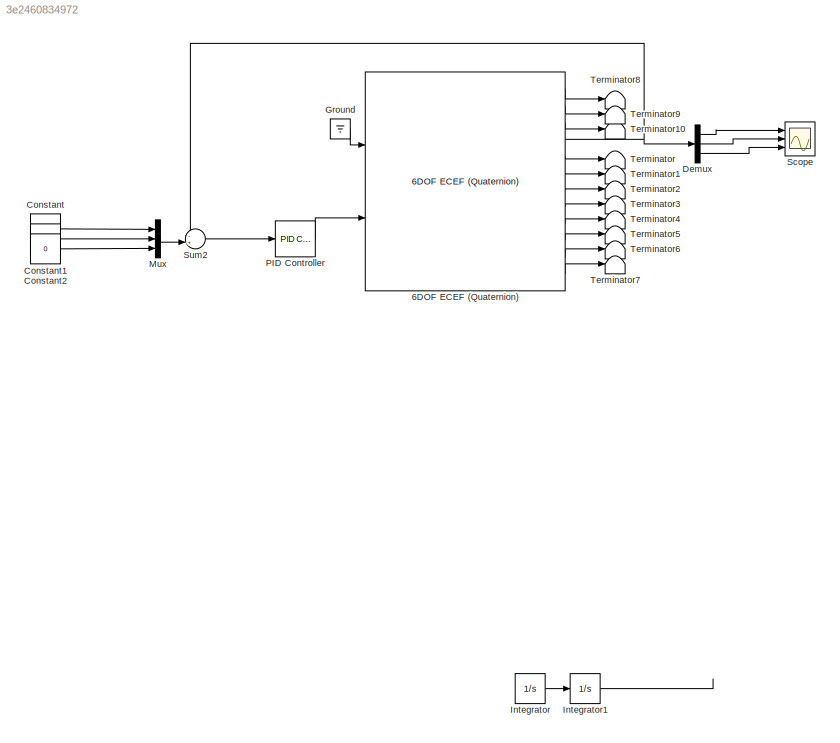
MODEL slx_3e2460834972
KIND model
CONFIG AbsTol = auto
CONFIG EnableMultiTasking = off
CONFIG FixedStep = 0.01
CONFIG MaxStep = 0.01
CONFIG MinStep = 0.01
CONFIG RelTol = 1e-3
CONFIG SampleTimeConstraint = Unconstrained
CONFIG Solver = FixedStepAuto
CONFIG SolverName = FixedStepAuto
CONFIG StartTime = 0.0
CONFIG StopTime = 300
BLOCK [Reference] 6DOF ECEF (Quaternion)  REF=aerolib6dof2/6DOF ECEF (Quaternion)
  Ports = [2, 12]
  SourceBlock = aerolib6dof2/6DOF ECEF (Quaternion)
  SourceProductBaseCode = AE
  SourceProductName = Aerospace Blockset
  SourceType = 6DOF EoM (ECEF)
BLOCK [Constant] Constant
  Value = 0
BLOCK [Constant] Constant1
  Value = 0
BLOCK [Constant] Constant2
  Value = 0
BLOCK [Demux] Demux
  DisplayOption = bar
  Outputs = 3
  Ports = [1, 3]
BLOCK [Ground] Ground
BLOCK [Integrator] Integrator
  Commented = on
  Ports = [1, 1]
BLOCK [Integrator] Integrator1
  Commented = on
  Ports = [1, 1]
BLOCK [Mux] Mux
  DisplayOption = bar
  Inputs = 3
  Ports = [3, 1]
BLOCK [Reference] PID Controller  REF=simulink/Continuous/PID Controller
  Ports = [1, 1]
  SourceBlock = simulink/Continuous/PID Controller
  SourceProductBaseCode = SL
  SourceProductName = Simulink
  SourceType = PID 1dof
BLOCK [Scope] Scope
  Floating = off
  NumInputPorts = 3
  Ports = [3]
  ScopeSpecificationString = Simulink.scopes.TimeScopeBlockCfg('CurrentConfiguration', extmgr.ConfigurationSet(extmgr.Configuration('Core','General UI',true),extmgr.Configuration('Core','Source UI',true),extmgr.Configuration('Sources','WiredSimulink',true),extmgr.Configuration('Visuals','Time Domain',true,'SerializedDisplays',{struct('MinYLimReal','-0.17514','MaxYLimReal','1.57626','YLabelReal','','MinYLimMag','0.00000','MaxY...<+1401ch>
BLOCK [Sum] Sum2
  IconShape = round
  InputSameDT = off
  Inputs = -+|
  OutDataTypeStr = Inherit: Inherit via internal rule
  Ports = [2, 1]
  SaturateOnIntegerOverflow = off
BLOCK [Terminator] Terminator
BLOCK [Terminator] Terminator1
BLOCK [Terminator] Terminator10
BLOCK [Terminator] Terminator2
BLOCK [Terminator] Terminator3
BLOCK [Terminator] Terminator4
BLOCK [Terminator] Terminator5
BLOCK [Terminator] Terminator6
BLOCK [Terminator] Terminator7
BLOCK [Terminator] Terminator8
BLOCK [Terminator] Terminator9
LINE 6DOF ECEF (Quaternion):1 -> Terminator8:1
LINE 6DOF ECEF (Quaternion):10 -> Terminator5:1
LINE 6DOF ECEF (Quaternion):11 -> Terminator6:1
LINE 6DOF ECEF (Quaternion):12 -> Terminator7:1
LINE 6DOF ECEF (Quaternion):2 -> Terminator9:1
LINE 6DOF ECEF (Quaternion):3 -> Terminator10:1
NET 6DOF ECEF (Quaternion):4 -> Demux:1, Sum2:1
LINE 6DOF ECEF (Quaternion):5 -> Terminator:1
LINE 6DOF ECEF (Quaternion):6 -> Terminator1:1
LINE 6DOF ECEF (Quaternion):7 -> Terminator2:1
LINE 6DOF ECEF (Quaternion):8 -> Terminator3:1
LINE 6DOF ECEF (Quaternion):9 -> Terminator4:1
LINE Constant1:1 -> Mux:2
LINE Constant2:1 -> Mux:3
LINE Constant:1 -> Mux:1
LINE Demux:1 -> Scope:1
LINE Demux:2 -> Scope:2
LINE Demux:3 -> Scope:3
LINE Ground:1 -> 6DOF ECEF (Quaternion):1
LINE Integrator:1 -> Integrator1:1
LINE Mux:1 -> Sum2:2
LINE PID Controller:1 -> 6DOF ECEF (Quaternion):2
LINE Sum2:1 -> PID Controller:1
note: NET lines group one-source signal fan-out (src -> all destinations, sorted); 1:1 wires keep LINE
